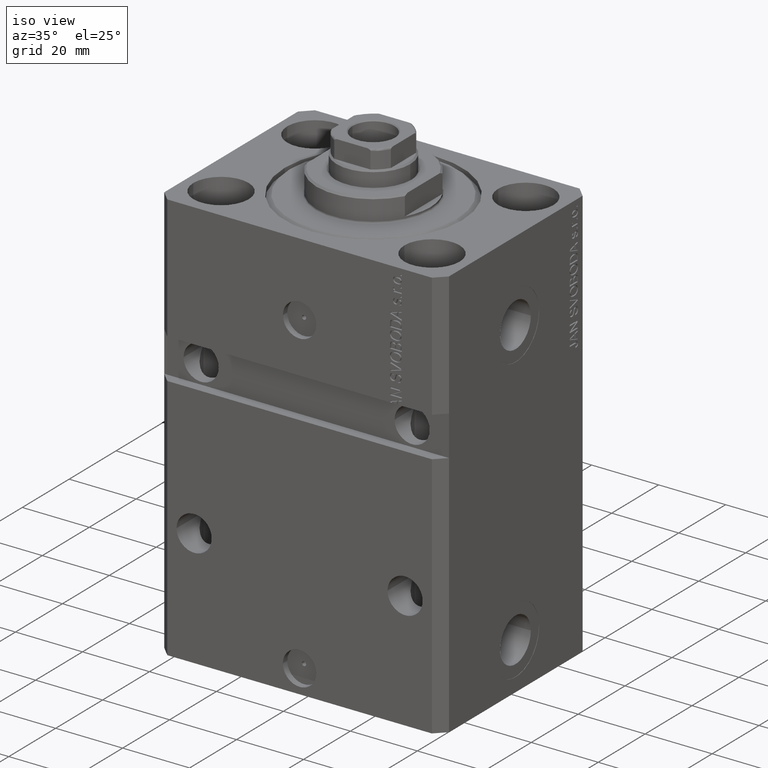
[diagram: clean part render]
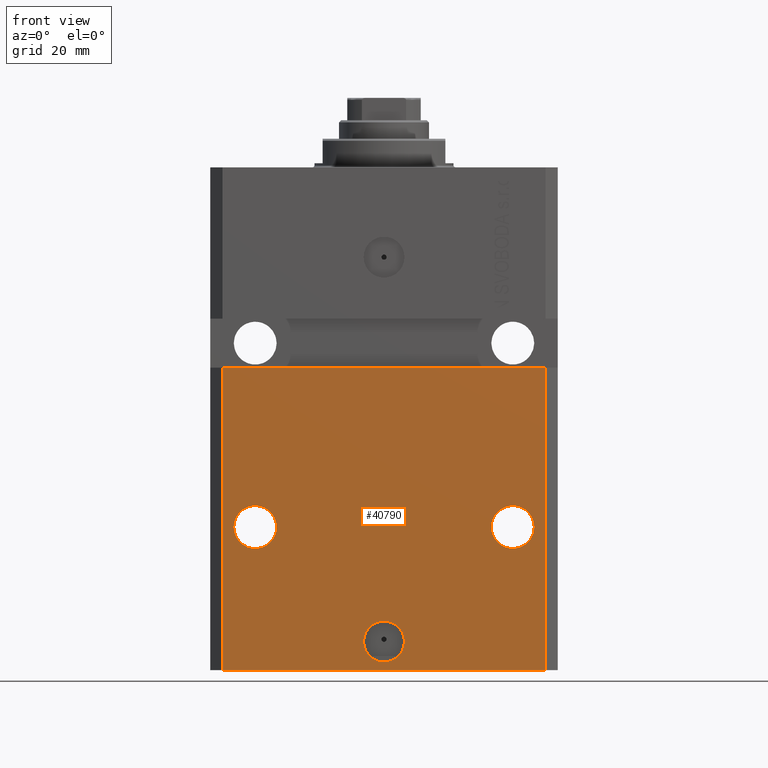
[diagram: tour spotlight — one face highlighted and labeled with its STEP entity id]
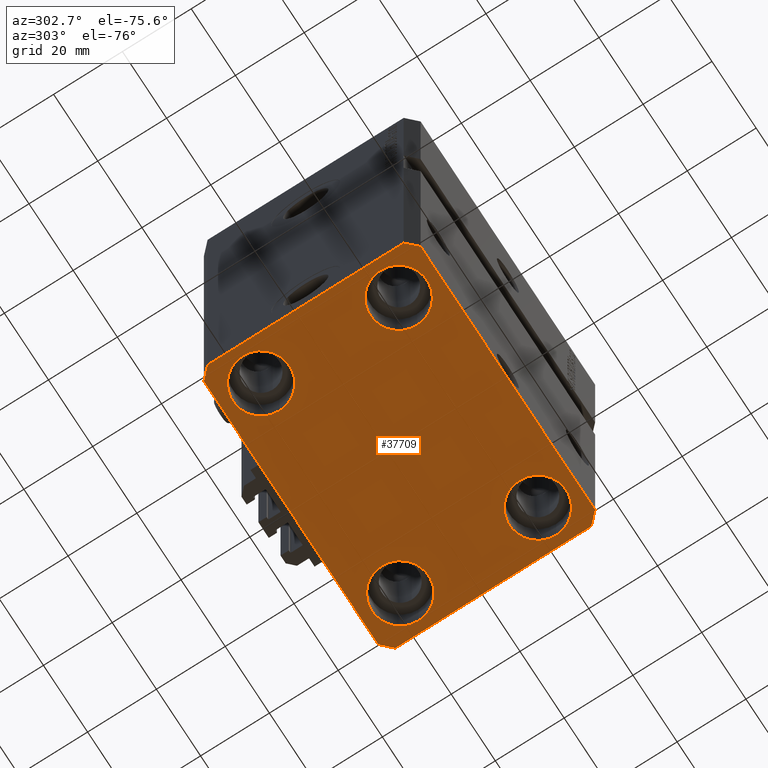
[diagram: tour spotlight — one face highlighted and labeled with its STEP entity id]
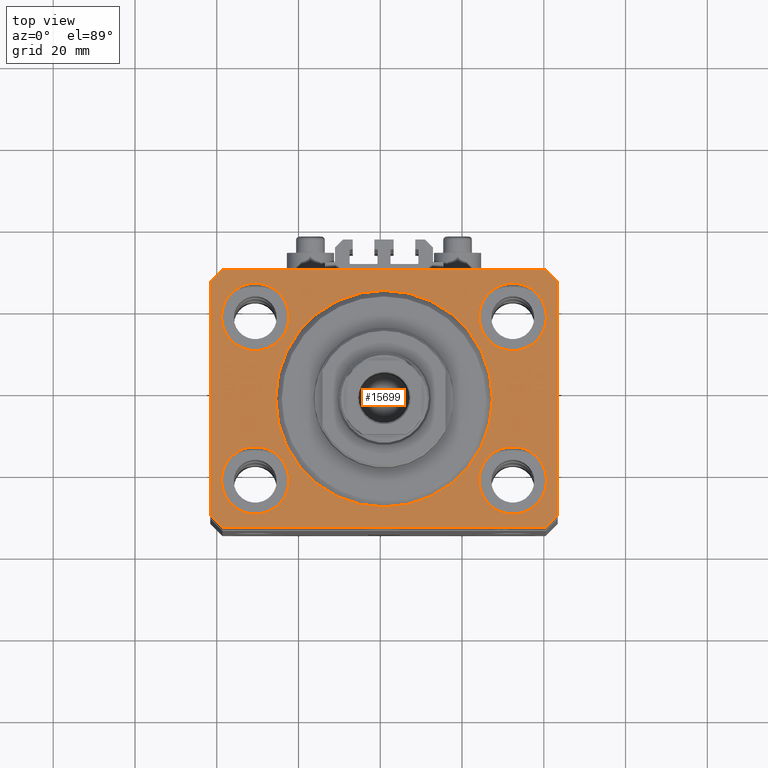
[diagram: tour spotlight — one face highlighted and labeled with its STEP entity id]
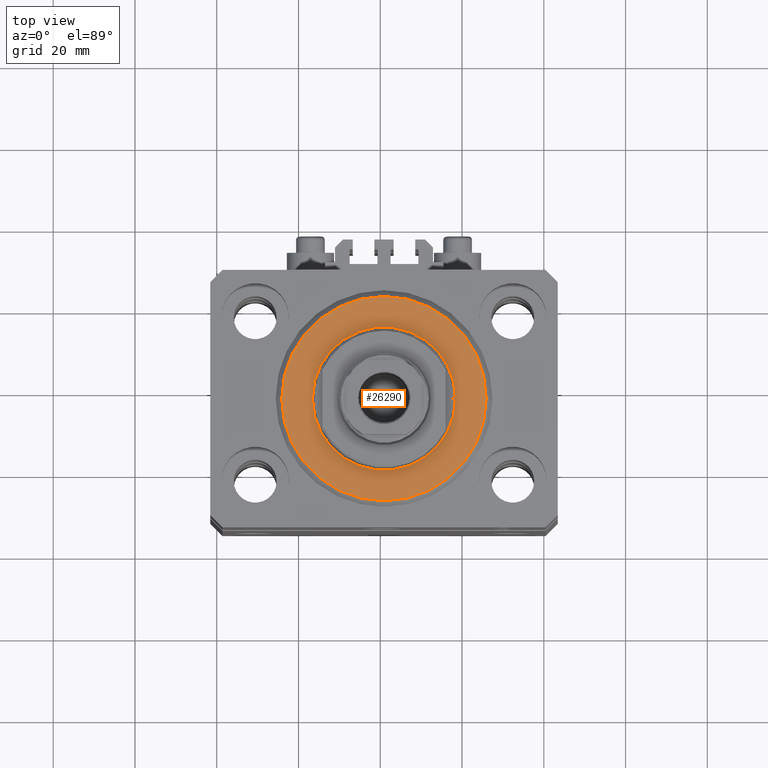
[diagram: tour spotlight — one face highlighted and labeled with its STEP entity id]
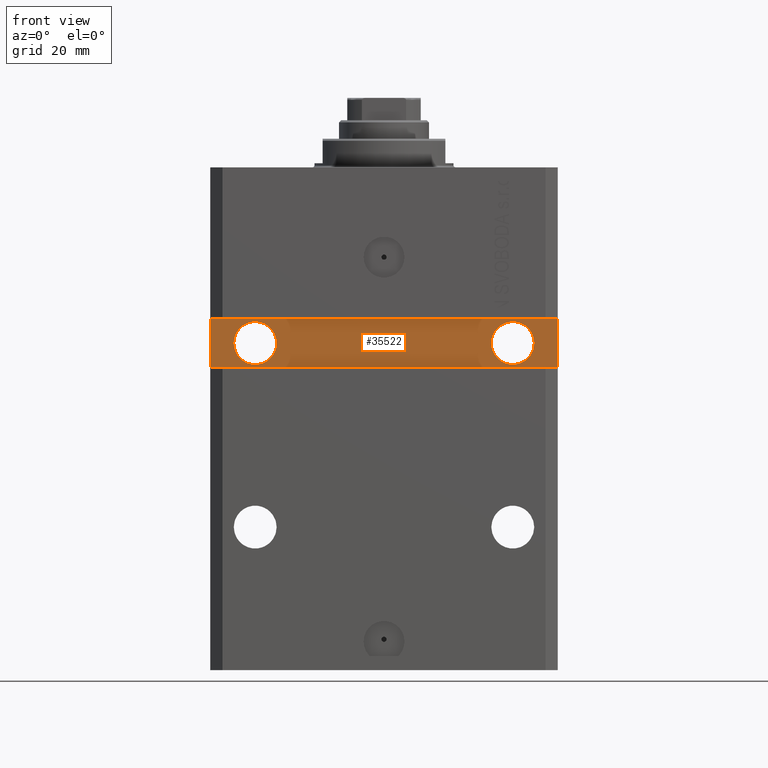
[diagram: tour spotlight — one face highlighted and labeled with its STEP entity id]
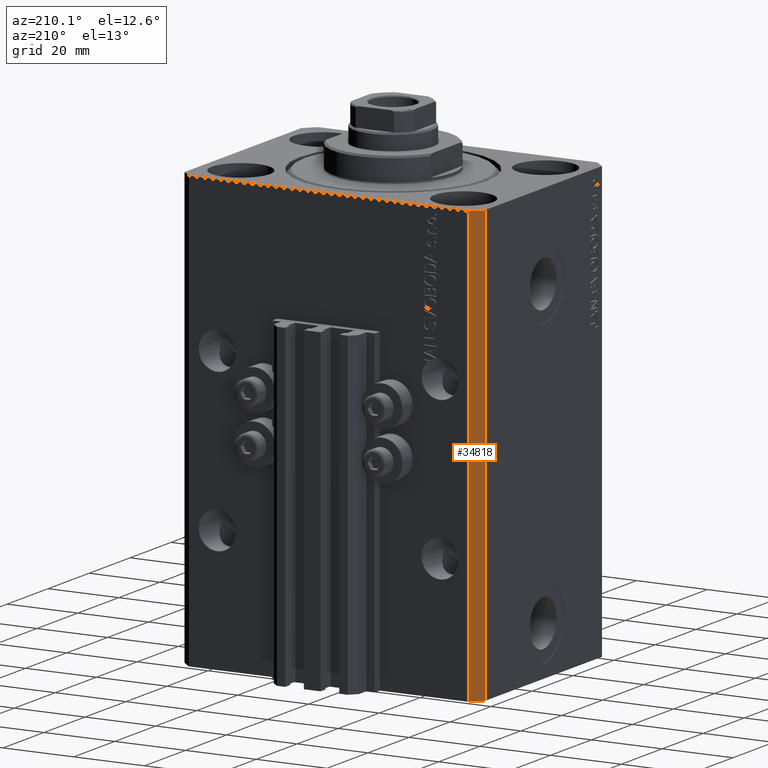
[diagram: tour spotlight — one face highlighted and labeled with its STEP entity id]
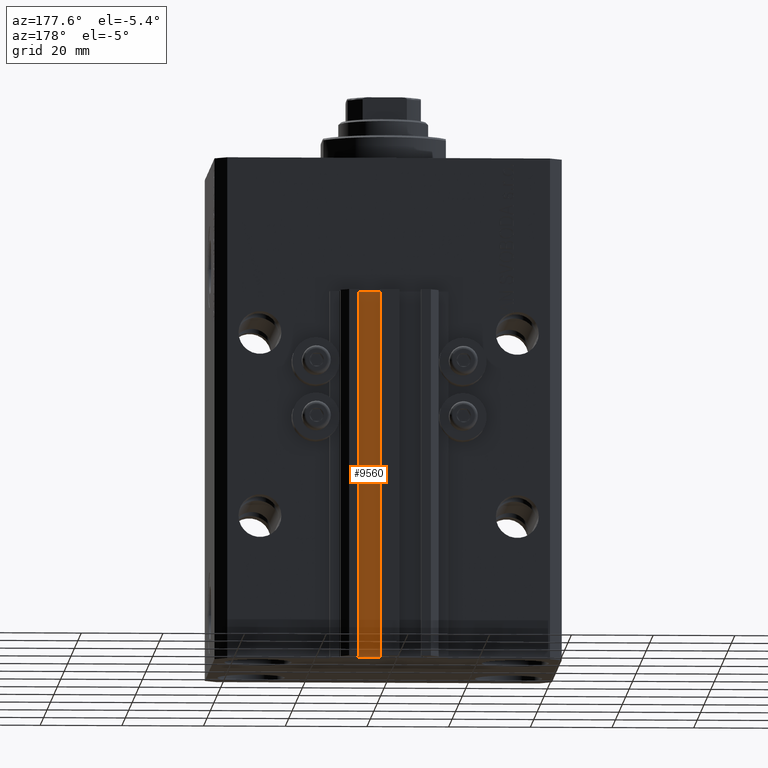
[diagram: tour spotlight — one face highlighted and labeled with its STEP entity id]
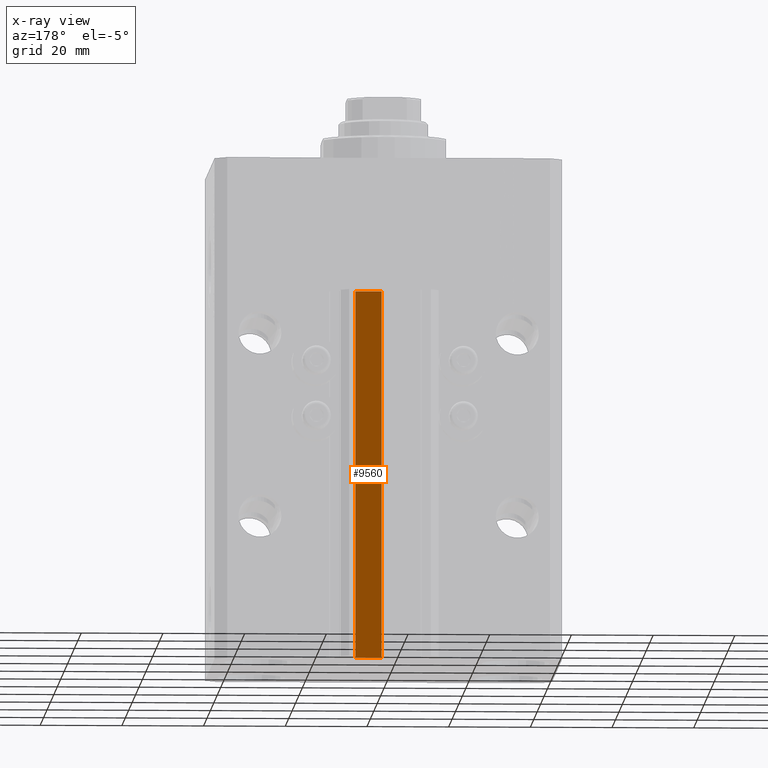
[diagram: x-ray of the same camera — body ghosted, this tour face saturated]
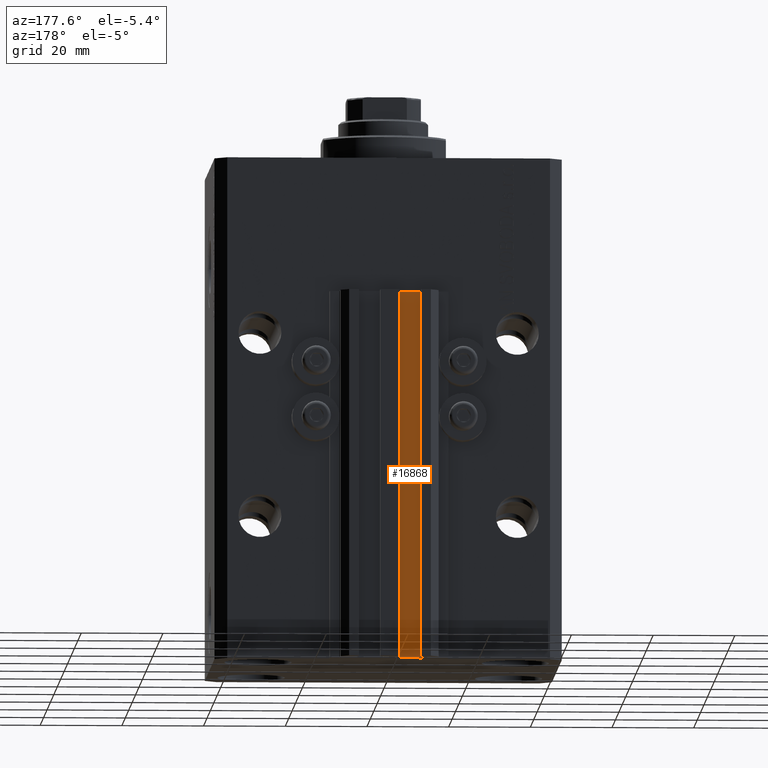
[diagram: tour spotlight — one face highlighted and labeled with its STEP entity id]
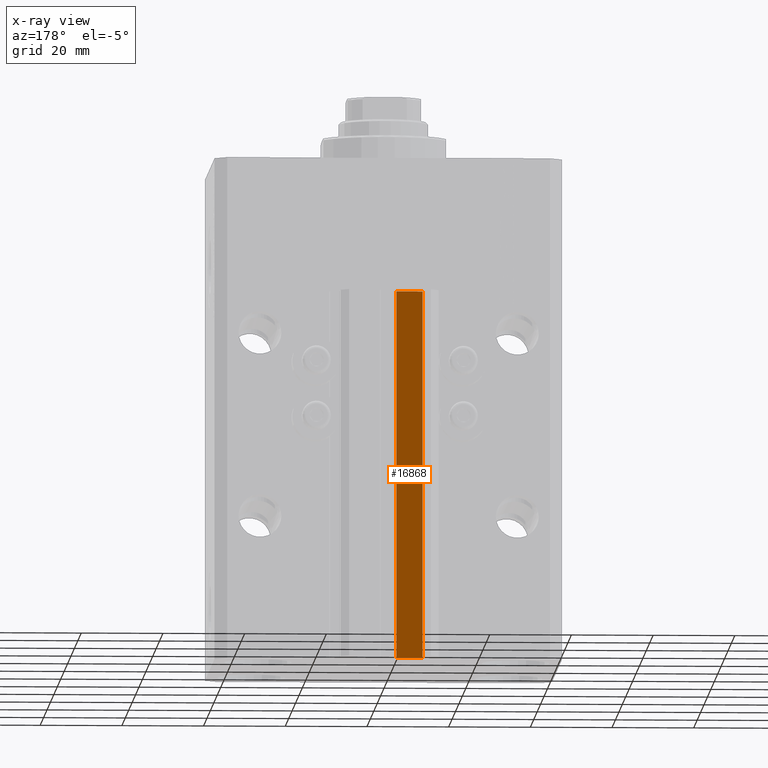
[diagram: x-ray of the same camera — body ghosted, this tour face saturated]
A machine part: a face-by-face anatomy tour. The part has 1123 B-rep faces; the first image is the clean iso view, then the 8 largest visible faces are spotlighted one at a time (largest first), each with its STEP entity span.

Face 1 — front view, entity #40790. In plain terms, the highlighted planar face has unit normal (0, -1, 0).
Definition (entity closure, byte-faithful):
#364 = CARTESIAN_POINT ( 'NONE',  ( 0.000000000000000000, -31.50000000000000000, -115.9999999999999858 ) ) ;
#481 = AXIS2_PLACEMENT_3D ( 'NONE', #810, #26676, #4748 ) ;
#676 = VECTOR ( 'NONE', #39851, 1000.000000000000000 ) ;
#810 = CARTESIAN_POINT ( 'NONE',  ( 31.50000000000001421, -31.49999999999999289, -88.00000000000000000 ) ) ;
#1027 = AXIS2_PLACEMENT_3D ( 'NONE', #41566, #22618, #26107 ) ;
#1991 = VERTEX_POINT ( 'NONE', #36711 ) ;
#2200 = AXIS2_PLACEMENT_3D ( 'NONE', #364, #23042, #26481 ) ;
#3393 = EDGE_CURVE ( 'NONE', #46586, #12138, #6645, .T. ) ;
#3699 = EDGE_CURVE ( 'NONE', #12850, #46586, #21127, .T. ) ;
#4072 = EDGE_CURVE ( 'NONE', #14318, #41833, #18187, .T. ) ;
#4573 = EDGE_CURVE ( 'NONE', #35524, #46515, #4810, .T. ) ;
#4748 = DIRECTION ( 'NONE',  ( 1.000000000000000000, 0.000000000000000000, 0.000000000000000000 ) ) ;
#4810 = CIRCLE ( 'NONE', #7177, 5.000000000000006217 ) ;
#5187 = CARTESIAN_POINT ( 'NONE',  ( -31.50000000000001421, -31.50000000000000711, -88.00000000000000000 ) ) ;
#5648 = ORIENTED_EDGE ( 'NONE', *, *, #43462, .F. ) ;
#6645 = LINE ( 'NONE', #20941, #9501 ) ;
#7177 = AXIS2_PLACEMENT_3D ( 'NONE', #8357, #27787, #23379 ) ;
#7343 = CARTESIAN_POINT ( 'NONE',  ( -31.50000000000001421, -31.50000000000000711, -88.00000000000000000 ) ) ;
#8019 = EDGE_LOOP ( 'NONE', ( #32770, #5648 ) ) ;
#8357 = CARTESIAN_POINT ( 'NONE',  ( 0.000000000000000000, -31.50000000000000000, -115.9999999999999858 ) ) ;
#9501 = VECTOR ( 'NONE', #47475, 1000.000000000000000 ) ;
#9855 = AXIS2_PLACEMENT_3D ( 'NONE', #44377, #28014, #24333 ) ;
#10042 = CARTESIAN_POINT ( 'NONE',  ( -39.50000000000000711, -31.50000000000000000, -123.0000000000000000 ) ) ;
#10569 = LINE ( 'NONE', #25585, #676 ) ;
#10682 = LINE ( 'NONE', #48043, #32215 ) ;
#11088 = FACE_BOUND ( 'NONE', #8019, .T. ) ;
#11574 = FACE_OUTER_BOUND ( 'NONE', #16522, .T. ) ;
#12138 = VERTEX_POINT ( 'NONE', #27140 ) ;
#12282 = VERTEX_POINT ( 'NONE', #15285 ) ;
#12799 = EDGE_LOOP ( 'NONE', ( #19626, #32009 ) ) ;
#12850 = VERTEX_POINT ( 'NONE', #24681 ) ;
#13094 = ORIENTED_EDGE ( 'NONE', *, *, #46032, .F. ) ;
#13485 = AXIS2_PLACEMENT_3D ( 'NONE', #5187, #35214, #23921 ) ;
#13979 = ORIENTED_EDGE ( 'NONE', *, *, #30166, .T. ) ;
#14318 = VERTEX_POINT ( 'NONE', #39580 ) ;
#15023 = FACE_BOUND ( 'NONE', #21446, .T. ) ;
#15285 = CARTESIAN_POINT ( 'NONE',  ( 26.25000000000001776, -31.49999999999999289, -88.00000000000000000 ) ) ;
#16522 = EDGE_LOOP ( 'NONE', ( #33530, #23820, #20403, #13979 ) ) ;
#18187 = CIRCLE ( 'NONE', #13485, 5.249999999999997335 ) ;
#19626 = ORIENTED_EDGE ( 'NONE', *, *, #4573, .F. ) ;
#20105 = AXIS2_PLACEMENT_3D ( 'NONE', #7343, #36874, #26061 ) ;
#20343 = CARTESIAN_POINT ( 'NONE',  ( -36.75000000000001421, -31.50000000000000711, -88.00000000000000000 ) ) ;
#20380 = VERTEX_POINT ( 'NONE', #37929 ) ;
#20403 = ORIENTED_EDGE ( 'NONE', *, *, #27224, .T. ) ;
#20941 = CARTESIAN_POINT ( 'NONE',  ( -42.50000000000000000, -31.50000000000000711, -48.99999999999999289 ) ) ;
#21127 = LINE ( 'NONE', #10042, #38552 ) ;
#21446 = EDGE_LOOP ( 'NONE', ( #13094, #47151 ) ) ;
#21721 = CIRCLE ( 'NONE', #481, 5.249999999999997335 ) ;
#22006 = DIRECTION ( 'NONE',  ( 0.000000000000000000, 0.000000000000000000, 1.000000000000000000 ) ) ;
#22618 = DIRECTION ( 'NONE',  ( 0.000000000000000000, -1.000000000000000000, 0.000000000000000000 ) ) ;
#22668 = EDGE_CURVE ( 'NONE', #12282, #20380, #21721, .T. ) ;
#23042 = DIRECTION ( 'NONE',  ( 1.176083712526788232E-16, -1.000000000000000000, 0.000000000000000000 ) ) ;
#23379 = DIRECTION ( 'NONE',  ( 1.000000000000000000, 0.000000000000000000, 0.000000000000000000 ) ) ;
#23384 = FACE_BOUND ( 'NONE', #12799, .T. ) ;
#23429 = CARTESIAN_POINT ( 'NONE',  ( -39.50000000000000000, -31.50000000000000711, -48.99999999999999289 ) ) ;
#23820 = ORIENTED_EDGE ( 'NONE', *, *, #3699, .F. ) ;
#23921 = DIRECTION ( 'NONE',  ( -1.000000000000000000, 0.000000000000000000, 0.000000000000000000 ) ) ;
#24052 = CIRCLE ( 'NONE', #20105, 5.249999999999997335 ) ;
#24333 = DIRECTION ( 'NONE',  ( 1.000000000000000000, 0.000000000000000000, 0.000000000000000000 ) ) ;
#24681 = CARTESIAN_POINT ( 'NONE',  ( -39.50000000000000711, -31.50000000000000000, -123.0000000000000000 ) ) ;
#25585 = CARTESIAN_POINT ( 'NONE',  ( -39.50000000000000711, -31.50000000000000000, -123.0000000000000000 ) ) ;
#26061 = DIRECTION ( 'NONE',  ( -1.000000000000000000, 0.000000000000000000, 0.000000000000000000 ) ) ;
#26107 = DIRECTION ( 'NONE',  ( 0.000000000000000000, -0.000000000000000000, -1.000000000000000000 ) ) ;
#26481 = DIRECTION ( 'NONE',  ( 1.000000000000000000, 0.000000000000000000, 0.000000000000000000 ) ) ;
#26584 = PLANE ( 'NONE',  #1027 ) ;
#26670 = EDGE_CURVE ( 'NONE', #46515, #35524, #29724, .T. ) ;
#26676 = DIRECTION ( 'NONE',  ( 1.176083712526788232E-16, -1.000000000000000000, 0.000000000000000000 ) ) ;
#27140 = CARTESIAN_POINT ( 'NONE',  ( 39.50000000000001421, -31.49999999999999289, -48.99999999999997868 ) ) ;
#27224 = EDGE_CURVE ( 'NONE', #12850, #1991, #10569, .T. ) ;
#27787 = DIRECTION ( 'NONE',  ( 1.176083712526788232E-16, -1.000000000000000000, 0.000000000000000000 ) ) ;
#28014 = DIRECTION ( 'NONE',  ( 1.176083712526788232E-16, -1.000000000000000000, 0.000000000000000000 ) ) ;
#29724 = CIRCLE ( 'NONE', #2200, 5.000000000000006217 ) ;
#30166 = EDGE_CURVE ( 'NONE', #1991, #12138, #10682, .T. ) ;
#31065 = CIRCLE ( 'NONE', #9855, 5.249999999999997335 ) ;
#32009 = ORIENTED_EDGE ( 'NONE', *, *, #26670, .F. ) ;
#32215 = VECTOR ( 'NONE', #22006, 1000.000000000000000 ) ;
#32770 = ORIENTED_EDGE ( 'NONE', *, *, #4072, .F. ) ;
#33530 = ORIENTED_EDGE ( 'NONE', *, *, #3393, .F. ) ;
#35214 = DIRECTION ( 'NONE',  ( 1.176083712526788232E-16, -1.000000000000000000, 0.000000000000000000 ) ) ;
#35524 = VERTEX_POINT ( 'NONE', #38906 ) ;
#36711 = CARTESIAN_POINT ( 'NONE',  ( 39.50000000000000711, -31.50000000000000000, -123.0000000000000000 ) ) ;
#36874 = DIRECTION ( 'NONE',  ( 1.176083712526788232E-16, -1.000000000000000000, 0.000000000000000000 ) ) ;
#37329 = DIRECTION ( 'NONE',  ( 0.000000000000000000, 0.000000000000000000, 1.000000000000000000 ) ) ;
#37929 = CARTESIAN_POINT ( 'NONE',  ( 36.75000000000001421, -31.49999999999999289, -88.00000000000000000 ) ) ;
#38552 = VECTOR ( 'NONE', #37329, 1000.000000000000000 ) ;
#38906 = CARTESIAN_POINT ( 'NONE',  ( 5.000000000000006217, -31.50000000000000000, -115.9999999999999858 ) ) ;
#39580 = CARTESIAN_POINT ( 'NONE',  ( -26.25000000000001776, -31.50000000000000711, -88.00000000000000000 ) ) ;
#39851 = DIRECTION ( 'NONE',  ( 1.000000000000000000, 0.000000000000000000, 0.000000000000000000 ) ) ;
#40790 = ADVANCED_FACE ( 'NONE', ( #23384, #15023, #11088, #11574 ), #26584, .T. ) ;
#41566 = CARTESIAN_POINT ( 'NONE',  ( -39.50000000000000711, -31.50000000000000000, -123.0000000000000000 ) ) ;
#41833 = VERTEX_POINT ( 'NONE', #20343 ) ;
#43462 = EDGE_CURVE ( 'NONE', #41833, #14318, #24052, .T. ) ;
#44377 = CARTESIAN_POINT ( 'NONE',  ( 31.50000000000001421, -31.49999999999999289, -88.00000000000000000 ) ) ;
#45060 = CARTESIAN_POINT ( 'NONE',  ( -5.000000000000006217, -31.50000000000000000, -115.9999999999999858 ) ) ;
#46032 = EDGE_CURVE ( 'NONE', #20380, #12282, #31065, .T. ) ;
#46515 = VERTEX_POINT ( 'NONE', #45060 ) ;
#46586 = VERTEX_POINT ( 'NONE', #23429 ) ;
#47151 = ORIENTED_EDGE ( 'NONE', *, *, #22668, .F. ) ;
#47475 = DIRECTION ( 'NONE',  ( 1.000000000000000000, 1.632680918566406300E-16, 1.632680918566406300E-16 ) ) ;
#48043 = CARTESIAN_POINT ( 'NONE',  ( 39.50000000000000711, -31.50000000000000000, -123.0000000000000000 ) ) ;

Face 2 — auxiliary view, entity #37709. In plain terms, the highlighted planar face has unit normal (0, 0, 1).
Definition (entity closure, byte-faithful):
#188 = VERTEX_POINT ( 'NONE', #15556 ) ;
#575 = DIRECTION ( 'NONE',  ( -0.7071067811865356934, 0.7071067811865594521, 0.000000000000000000 ) ) ;
#676 = VECTOR ( 'NONE', #39851, 1000.000000000000000 ) ;
#1502 = VERTEX_POINT ( 'NONE', #8775 ) ;
#1807 = CARTESIAN_POINT ( 'NONE',  ( -39.75000000000000000, -20.00000000000000000, -123.0000000000000000 ) ) ;
#1820 = ORIENTED_EDGE ( 'NONE', *, *, #35603, .F. ) ;
#1890 = LINE ( 'NONE', #16918, #36206 ) ;
#1991 = VERTEX_POINT ( 'NONE', #36711 ) ;
#2581 = CARTESIAN_POINT ( 'NONE',  ( 42.50000000000000711, -28.50000000000000355, -123.0000000000000000 ) ) ;
#3047 = CARTESIAN_POINT ( 'NONE',  ( 23.25000000000000355, -20.00000000000000000, -123.0000000000000000 ) ) ;
#3106 = AXIS2_PLACEMENT_3D ( 'NONE', #32921, #9555, #48135 ) ;
#3229 = AXIS2_PLACEMENT_3D ( 'NONE', #7138, #11324, #7385 ) ;
#3384 = CARTESIAN_POINT ( 'NONE',  ( -31.50000000000000000, -20.00000000000000000, -123.0000000000000000 ) ) ;
#3907 = DIRECTION ( 'NONE',  ( -0.000000000000000000, -0.000000000000000000, 1.000000000000000000 ) ) ;
#3994 = ORIENTED_EDGE ( 'NONE', *, *, #9466, .T. ) ;
#4876 = AXIS2_PLACEMENT_3D ( 'NONE', #3384, #6850, #48153 ) ;
#5005 = VERTEX_POINT ( 'NONE', #17140 ) ;
#5127 = LINE ( 'NONE', #46935, #39083 ) ;
#5775 = VERTEX_POINT ( 'NONE', #44403 ) ;
#6768 = EDGE_LOOP ( 'NONE', ( #21247, #23222, #32400, #32629, #19573, #43580, #44068, #1820 ) ) ;
#6803 = EDGE_CURVE ( 'NONE', #37046, #26685, #32414, .T. ) ;
#6850 = DIRECTION ( 'NONE',  ( -0.000000000000000000, -0.000000000000000000, 1.000000000000000000 ) ) ;
#6864 = EDGE_LOOP ( 'NONE', ( #41346, #44423 ) ) ;
#7138 = CARTESIAN_POINT ( 'NONE',  ( 31.50000000000000000, -20.00000000000000000, -123.0000000000000000 ) ) ;
#7385 = DIRECTION ( 'NONE',  ( 1.000000000000000000, 0.000000000000000000, 0.000000000000000000 ) ) ;
#7843 = CARTESIAN_POINT ( 'NONE',  ( -23.25000000000000000, -20.00000000000000000, -123.0000000000000000 ) ) ;
#8218 = EDGE_CURVE ( 'NONE', #26685, #37046, #39375, .T. ) ;
#8570 = PLANE ( 'NONE',  #34691 ) ;
#8775 = CARTESIAN_POINT ( 'NONE',  ( 42.50000000000051870, 28.49999999999995381, -123.0000000000000000 ) ) ;
#8844 = VECTOR ( 'NONE', #575, 1000.000000000000114 ) ;
#9087 = VERTEX_POINT ( 'NONE', #1807 ) ;
#9466 = EDGE_CURVE ( 'NONE', #9087, #48438, #40256, .T. ) ;
#9481 = EDGE_CURVE ( 'NONE', #48438, #9087, #37905, .T. ) ;
#9555 = DIRECTION ( 'NONE',  ( -0.000000000000000000, -0.000000000000000000, 1.000000000000000000 ) ) ;
#9732 = DIRECTION ( 'NONE',  ( 8.886653596232072440E-15, 1.000000000000000000, 0.000000000000000000 ) ) ;
#10152 = VECTOR ( 'NONE', #9732, 1000.000000000000000 ) ;
#10569 = LINE ( 'NONE', #25585, #676 ) ;
#10584 = VERTEX_POINT ( 'NONE', #35591 ) ;
#11324 = DIRECTION ( 'NONE',  ( -0.000000000000000000, -0.000000000000000000, 1.000000000000000000 ) ) ;
#11457 = DIRECTION ( 'NONE',  ( 1.000000000000000000, 0.000000000000000000, 0.000000000000000000 ) ) ;
#11650 = DIRECTION ( 'NONE',  ( 0.000000000000000000, -1.000000000000000000, 0.000000000000000000 ) ) ;
#11698 = CARTESIAN_POINT ( 'NONE',  ( 31.50000000000000000, -20.00000000000000000, -123.0000000000000000 ) ) ;
#12031 = DIRECTION ( 'NONE',  ( 0.000000000000000000, 0.000000000000000000, 1.000000000000000000 ) ) ;
#12458 = CARTESIAN_POINT ( 'NONE',  ( -39.50000000000000711, 31.50000000000000000, -123.0000000000000000 ) ) ;
#12517 = FACE_OUTER_BOUND ( 'NONE', #6768, .T. ) ;
#12850 = VERTEX_POINT ( 'NONE', #24681 ) ;
#12938 = DIRECTION ( 'NONE',  ( -0.000000000000000000, -0.000000000000000000, 1.000000000000000000 ) ) ;
#13597 = CIRCLE ( 'NONE', #41882, 8.250000000000000000 ) ;
#14922 = VERTEX_POINT ( 'NONE', #21940 ) ;
#14966 = DIRECTION ( 'NONE',  ( -0.000000000000000000, -0.000000000000000000, 1.000000000000000000 ) ) ;
#15207 = DIRECTION ( 'NONE',  ( 1.000000000000000000, 0.000000000000000000, 0.000000000000000000 ) ) ;
#15556 = CARTESIAN_POINT ( 'NONE',  ( 39.50000000000056843, 31.50000000000000000, -123.0000000000000000 ) ) ;
#15637 = CARTESIAN_POINT ( 'NONE',  ( 39.74999999999999289, -20.00000000000000000, -123.0000000000000000 ) ) ;
#16321 = EDGE_CURVE ( 'NONE', #14922, #12850, #40561, .T. ) ;
#16682 = EDGE_CURVE ( 'NONE', #5005, #14922, #22503, .T. ) ;
#16918 = CARTESIAN_POINT ( 'NONE',  ( -39.50000000000000711, 31.50000000000000000, -123.0000000000000000 ) ) ;
#17140 = CARTESIAN_POINT ( 'NONE',  ( -42.50000000000000000, 28.50000000000000000, -123.0000000000000000 ) ) ;
#18085 = LINE ( 'NONE', #2581, #10152 ) ;
#18846 = ORIENTED_EDGE ( 'NONE', *, *, #40550, .T. ) ;
#18920 = CARTESIAN_POINT ( 'NONE',  ( 39.50000000000056843, 31.50000000000000000, -123.0000000000000000 ) ) ;
#19271 = CIRCLE ( 'NONE', #25557, 8.249999999999992895 ) ;
#19380 = VERTEX_POINT ( 'NONE', #36405 ) ;
#19573 = ORIENTED_EDGE ( 'NONE', *, *, #27224, .F. ) ;
#19655 = FACE_BOUND ( 'NONE', #30482, .T. ) ;
#19880 = EDGE_CURVE ( 'NONE', #22264, #10584, #19271, .T. ) ;
#21247 = ORIENTED_EDGE ( 'NONE', *, *, #43692, .F. ) ;
#21782 = EDGE_LOOP ( 'NONE', ( #30741, #33622 ) ) ;
#21940 = CARTESIAN_POINT ( 'NONE',  ( -42.50000000000000000, -28.50000000000000000, -123.0000000000000000 ) ) ;
#22264 = VERTEX_POINT ( 'NONE', #36594 ) ;
#22503 = LINE ( 'NONE', #45091, #45187 ) ;
#23222 = ORIENTED_EDGE ( 'NONE', *, *, #39241, .F. ) ;
#23845 = EDGE_LOOP ( 'NONE', ( #32105, #18846 ) ) ;
#24557 = EDGE_CURVE ( 'NONE', #1991, #5775, #5127, .T. ) ;
#24681 = CARTESIAN_POINT ( 'NONE',  ( -39.50000000000000711, -31.50000000000000000, -123.0000000000000000 ) ) ;
#25557 = AXIS2_PLACEMENT_3D ( 'NONE', #31884, #12938, #43169 ) ;
#25585 = CARTESIAN_POINT ( 'NONE',  ( -39.50000000000000711, -31.50000000000000000, -123.0000000000000000 ) ) ;
#26062 = CARTESIAN_POINT ( 'NONE',  ( -42.50000000000000000, -28.50000000000000000, -123.0000000000000000 ) ) ;
#26083 = CARTESIAN_POINT ( 'NONE',  ( 31.50000000000000000, 20.00000000000001066, -123.0000000000000000 ) ) ;
#26302 = DIRECTION ( 'NONE',  ( 0.7071067811865471286, -0.7071067811865479058, 0.000000000000000000 ) ) ;
#26451 = CARTESIAN_POINT ( 'NONE',  ( 42.50000000000051870, 28.49999999999995381, -123.0000000000000000 ) ) ;
#26643 = CARTESIAN_POINT ( 'NONE',  ( -31.50000000000000000, 20.00000000000000000, -123.0000000000000000 ) ) ;
#26685 = VERTEX_POINT ( 'NONE', #15637 ) ;
#26886 = AXIS2_PLACEMENT_3D ( 'NONE', #29246, #14966, #15207 ) ;
#27224 = EDGE_CURVE ( 'NONE', #12850, #1991, #10569, .T. ) ;
#27282 = FACE_BOUND ( 'NONE', #6864, .T. ) ;
#28426 = AXIS2_PLACEMENT_3D ( 'NONE', #26083, #3907, #41068 ) ;
#28597 = VERTEX_POINT ( 'NONE', #12458 ) ;
#28669 = EDGE_CURVE ( 'NONE', #5775, #1502, #18085, .T. ) ;
#29246 = CARTESIAN_POINT ( 'NONE',  ( -31.50000000000000000, -20.00000000000000000, -123.0000000000000000 ) ) ;
#30482 = EDGE_LOOP ( 'NONE', ( #3994, #44217 ) ) ;
#30741 = ORIENTED_EDGE ( 'NONE', *, *, #6803, .T. ) ;
#30808 = CIRCLE ( 'NONE', #28426, 8.249999999999992895 ) ;
#31122 = DIRECTION ( 'NONE',  ( -0.000000000000000000, -0.000000000000000000, 1.000000000000000000 ) ) ;
#31189 = LINE ( 'NONE', #18920, #45988 ) ;
#31884 = CARTESIAN_POINT ( 'NONE',  ( 31.50000000000000000, 20.00000000000001066, -123.0000000000000000 ) ) ;
#31926 = DIRECTION ( 'NONE',  ( -0.7071067811865471286, -0.7071067811865479058, 0.000000000000000000 ) ) ;
#32105 = ORIENTED_EDGE ( 'NONE', *, *, #33809, .T. ) ;
#32400 = ORIENTED_EDGE ( 'NONE', *, *, #28669, .F. ) ;
#32414 = CIRCLE ( 'NONE', #36991, 8.249999999999992895 ) ;
#32629 = ORIENTED_EDGE ( 'NONE', *, *, #24557, .F. ) ;
#32921 = CARTESIAN_POINT ( 'NONE',  ( -31.50000000000000000, 20.00000000000000000, -123.0000000000000000 ) ) ;
#33622 = ORIENTED_EDGE ( 'NONE', *, *, #8218, .T. ) ;
#33809 = EDGE_CURVE ( 'NONE', #43514, #19380, #39286, .T. ) ;
#33915 = DIRECTION ( 'NONE',  ( -1.000000000000000000, 0.000000000000000000, 0.000000000000000000 ) ) ;
#34022 = DIRECTION ( 'NONE',  ( -0.000000000000000000, -0.000000000000000000, 1.000000000000000000 ) ) ;
#34653 = DIRECTION ( 'NONE',  ( 1.000000000000000000, 0.000000000000000000, -0.000000000000000000 ) ) ;
#34691 = AXIS2_PLACEMENT_3D ( 'NONE', #42739, #12031, #34653 ) ;
#35591 = CARTESIAN_POINT ( 'NONE',  ( 23.25000000000000355, 20.00000000000001066, -123.0000000000000000 ) ) ;
#35603 = EDGE_CURVE ( 'NONE', #28597, #5005, #1890, .T. ) ;
#35645 = DIRECTION ( 'NONE',  ( 0.7071067811865483499, 0.7071067811865466846, 0.000000000000000000 ) ) ;
#36206 = VECTOR ( 'NONE', #31926, 1000.000000000000000 ) ;
#36405 = CARTESIAN_POINT ( 'NONE',  ( -23.25000000000000000, 20.00000000000000000, -123.0000000000000000 ) ) ;
#36594 = CARTESIAN_POINT ( 'NONE',  ( 39.74999999999999289, 20.00000000000001066, -123.0000000000000000 ) ) ;
#36711 = CARTESIAN_POINT ( 'NONE',  ( 39.50000000000000711, -31.50000000000000000, -123.0000000000000000 ) ) ;
#36991 = AXIS2_PLACEMENT_3D ( 'NONE', #11698, #31122, #11457 ) ;
#37046 = VERTEX_POINT ( 'NONE', #3047 ) ;
#37645 = EDGE_CURVE ( 'NONE', #10584, #22264, #30808, .T. ) ;
#37709 = ADVANCED_FACE ( 'NONE', ( #19655, #45945, #27282, #38819, #12517 ), #8570, .F. ) ;
#37905 = CIRCLE ( 'NONE', #26886, 8.250000000000000000 ) ;
#38184 = DIRECTION ( 'NONE',  ( 1.000000000000000000, 0.000000000000000000, 0.000000000000000000 ) ) ;
#38465 = LINE ( 'NONE', #26451, #8844 ) ;
#38819 = FACE_BOUND ( 'NONE', #23845, .T. ) ;
#39083 = VECTOR ( 'NONE', #35645, 1000.000000000000000 ) ;
#39241 = EDGE_CURVE ( 'NONE', #1502, #188, #38465, .T. ) ;
#39286 = CIRCLE ( 'NONE', #3106, 8.250000000000000000 ) ;
#39375 = CIRCLE ( 'NONE', #3229, 8.249999999999992895 ) ;
#39851 = DIRECTION ( 'NONE',  ( 1.000000000000000000, 0.000000000000000000, 0.000000000000000000 ) ) ;
#40256 = CIRCLE ( 'NONE', #4876, 8.250000000000000000 ) ;
#40550 = EDGE_CURVE ( 'NONE', #19380, #43514, #13597, .T. ) ;
#40561 = LINE ( 'NONE', #26062, #43573 ) ;
#41068 = DIRECTION ( 'NONE',  ( 1.000000000000000000, 0.000000000000000000, 0.000000000000000000 ) ) ;
#41346 = ORIENTED_EDGE ( 'NONE', *, *, #37645, .T. ) ;
#41882 = AXIS2_PLACEMENT_3D ( 'NONE', #26643, #34022, #38184 ) ;
#42739 = CARTESIAN_POINT ( 'NONE',  ( 0.000000000000000000, 0.000000000000000000, -123.0000000000000000 ) ) ;
#43169 = DIRECTION ( 'NONE',  ( 1.000000000000000000, 0.000000000000000000, 0.000000000000000000 ) ) ;
#43514 = VERTEX_POINT ( 'NONE', #48404 ) ;
#43573 = VECTOR ( 'NONE', #26302, 1000.000000000000000 ) ;
#43580 = ORIENTED_EDGE ( 'NONE', *, *, #16321, .F. ) ;
#43692 = EDGE_CURVE ( 'NONE', #188, #28597, #31189, .T. ) ;
#44068 = ORIENTED_EDGE ( 'NONE', *, *, #16682, .F. ) ;
#44217 = ORIENTED_EDGE ( 'NONE', *, *, #9481, .T. ) ;
#44403 = CARTESIAN_POINT ( 'NONE',  ( 42.50000000000000711, -28.50000000000000355, -123.0000000000000000 ) ) ;
#44423 = ORIENTED_EDGE ( 'NONE', *, *, #19880, .T. ) ;
#45091 = CARTESIAN_POINT ( 'NONE',  ( -42.50000000000000000, 28.50000000000000000, -123.0000000000000000 ) ) ;
#45187 = VECTOR ( 'NONE', #11650, 1000.000000000000000 ) ;
#45945 = FACE_BOUND ( 'NONE', #21782, .T. ) ;
#45988 = VECTOR ( 'NONE', #33915, 1000.000000000000000 ) ;
#46935 = CARTESIAN_POINT ( 'NONE',  ( 39.50000000000000711, -31.50000000000000000, -123.0000000000000000 ) ) ;
#48135 = DIRECTION ( 'NONE',  ( 1.000000000000000000, 0.000000000000000000, 0.000000000000000000 ) ) ;
#48153 = DIRECTION ( 'NONE',  ( 1.000000000000000000, 0.000000000000000000, 0.000000000000000000 ) ) ;
#48404 = CARTESIAN_POINT ( 'NONE',  ( -39.75000000000000000, 20.00000000000000000, -123.0000000000000000 ) ) ;
#48438 = VERTEX_POINT ( 'NONE', #7843 ) ;

Face 3 — top view, entity #15699. In plain terms, the highlighted planar face has unit normal (0, 0, 1).
Definition (entity closure, byte-faithful):
#1451 = EDGE_LOOP ( 'NONE', ( #20819, #42472 ) ) ;
#2128 = CARTESIAN_POINT ( 'NONE',  ( -31.50000000000000000, -20.00000000000000000, 0.000000000000000000 ) ) ;
#2168 = AXIS2_PLACEMENT_3D ( 'NONE', #19854, #34857, #46145 ) ;
#2182 = VERTEX_POINT ( 'NONE', #30547 ) ;
#2848 = EDGE_CURVE ( 'NONE', #27493, #10673, #40148, .T. ) ;
#2892 = CARTESIAN_POINT ( 'NONE',  ( 39.50000000000000711, -31.50000000000000000, 0.000000000000000000 ) ) ;
#3167 = CARTESIAN_POINT ( 'NONE',  ( 42.50000000000000711, -28.50000000000000355, 0.000000000000000000 ) ) ;
#3176 = CIRCLE ( 'NONE', #42469, 8.250000000000000000 ) ;
#3332 = CARTESIAN_POINT ( 'NONE',  ( 0.000000000000000000, 0.000000000000000000, 0.000000000000000000 ) ) ;
#3644 = DIRECTION ( 'NONE',  ( 1.000000000000000000, 0.000000000000000000, 0.000000000000000000 ) ) ;
#3754 = DIRECTION ( 'NONE',  ( 1.000000000000000000, 0.000000000000000000, 0.000000000000000000 ) ) ;
#3762 = DIRECTION ( 'NONE',  ( 0.000000000000000000, 0.000000000000000000, 1.000000000000000000 ) ) ;
#4587 = DIRECTION ( 'NONE',  ( 0.000000000000000000, 0.000000000000000000, 1.000000000000000000 ) ) ;
#4807 = EDGE_CURVE ( 'NONE', #42598, #13235, #26849, .T. ) ;
#4835 = CARTESIAN_POINT ( 'NONE',  ( 23.25000000000000355, 20.00000000000001066, 0.000000000000000000 ) ) ;
#5628 = AXIS2_PLACEMENT_3D ( 'NONE', #23800, #4587, #38780 ) ;
#5639 = VECTOR ( 'NONE', #14384, 1000.000000000000000 ) ;
#5973 = ORIENTED_EDGE ( 'NONE', *, *, #30774, .T. ) ;
#6206 = VECTOR ( 'NONE', #10080, 1000.000000000000000 ) ;
#7602 = EDGE_CURVE ( 'NONE', #33212, #24426, #16941, .T. ) ;
#7728 = AXIS2_PLACEMENT_3D ( 'NONE', #18792, #3762, #29853 ) ;
#7755 = CARTESIAN_POINT ( 'NONE',  ( -42.50000000000000000, -28.50000000000000000, 0.000000000000000000 ) ) ;
#8003 = PLANE ( 'NONE',  #31836 ) ;
#8625 = AXIS2_PLACEMENT_3D ( 'NONE', #18701, #37869, #11072 ) ;
#8649 = CARTESIAN_POINT ( 'NONE',  ( -42.50000000000000000, 28.50000000000000000, 0.000000000000000000 ) ) ;
#9747 = ORIENTED_EDGE ( 'NONE', *, *, #31497, .T. ) ;
#9811 = CIRCLE ( 'NONE', #37304, 8.249999999999992895 ) ;
#10080 = DIRECTION ( 'NONE',  ( 0.7071067811865483499, 0.7071067811865466846, 0.000000000000000000 ) ) ;
#10108 = VERTEX_POINT ( 'NONE', #45557 ) ;
#10312 = VERTEX_POINT ( 'NONE', #37868 ) ;
#10568 = CARTESIAN_POINT ( 'NONE',  ( 39.50000000000000711, -31.50000000000000000, 0.000000000000000000 ) ) ;
#10673 = VERTEX_POINT ( 'NONE', #4835 ) ;
#11072 = DIRECTION ( 'NONE',  ( 1.000000000000000000, 0.000000000000000000, 0.000000000000000000 ) ) ;
#11666 = AXIS2_PLACEMENT_3D ( 'NONE', #2128, #31919, #17162 ) ;
#11668 = EDGE_LOOP ( 'NONE', ( #29855, #40446 ) ) ;
#11937 = CARTESIAN_POINT ( 'NONE',  ( -23.25000000000000000, 20.00000000000000000, 0.000000000000000000 ) ) ;
#11966 = LINE ( 'NONE', #33379, #32573 ) ;
#12118 = CARTESIAN_POINT ( 'NONE',  ( -39.75000000000000000, 20.00000000000000000, 0.000000000000000000 ) ) ;
#12523 = DIRECTION ( 'NONE',  ( -0.7071067811865471286, -0.7071067811865479058, 0.000000000000000000 ) ) ;
#12572 = CIRCLE ( 'NONE', #8625, 8.250000000000000000 ) ;
#13119 = LINE ( 'NONE', #43341, #38380 ) ;
#13196 = CARTESIAN_POINT ( 'NONE',  ( 31.50000000000000000, -20.00000000000000000, 0.000000000000000000 ) ) ;
#13235 = VERTEX_POINT ( 'NONE', #18895 ) ;
#14294 = EDGE_LOOP ( 'NONE', ( #41469, #19583 ) ) ;
#14384 = DIRECTION ( 'NONE',  ( 8.886653596232072440E-15, 1.000000000000000000, 0.000000000000000000 ) ) ;
#14625 = CARTESIAN_POINT ( 'NONE',  ( -39.50000000000000711, -31.50000000000000000, 0.000000000000000000 ) ) ;
#14633 = DIRECTION ( 'NONE',  ( 1.000000000000000000, 0.000000000000000000, 0.000000000000000000 ) ) ;
#15169 = DIRECTION ( 'NONE',  ( 1.000000000000000000, 0.000000000000000000, 0.000000000000000000 ) ) ;
#15392 = FACE_BOUND ( 'NONE', #41336, .T. ) ;
#15699 = ADVANCED_FACE ( 'NONE', ( #19096, #34090, #30398, #15392, #37292, #45378 ), #8003, .T. ) ;
#15944 = DIRECTION ( 'NONE',  ( 0.000000000000000000, -1.000000000000000000, 0.000000000000000000 ) ) ;
#16213 = EDGE_CURVE ( 'NONE', #23908, #36815, #9811, .T. ) ;
#16941 = LINE ( 'NONE', #28514, #43294 ) ;
#17162 = DIRECTION ( 'NONE',  ( 1.000000000000000000, 0.000000000000000000, 0.000000000000000000 ) ) ;
#18062 = AXIS2_PLACEMENT_3D ( 'NONE', #13196, #46134, #31400 ) ;
#18332 = DIRECTION ( 'NONE',  ( 0.000000000000000000, 0.000000000000000000, 1.000000000000000000 ) ) ;
#18420 = CARTESIAN_POINT ( 'NONE',  ( -39.75000000000000000, -20.00000000000000000, 0.000000000000000000 ) ) ;
#18701 = CARTESIAN_POINT ( 'NONE',  ( -31.50000000000000000, 20.00000000000000000, 0.000000000000000000 ) ) ;
#18792 = CARTESIAN_POINT ( 'NONE',  ( 0.000000000000000000, 0.000000000000000000, 0.000000000000000000 ) ) ;
#18895 = CARTESIAN_POINT ( 'NONE',  ( -23.25000000000000000, -20.00000000000000000, 0.000000000000000000 ) ) ;
#18911 = EDGE_CURVE ( 'NONE', #36955, #29325, #11966, .T. ) ;
#19096 = FACE_BOUND ( 'NONE', #24665, .T. ) ;
#19583 = ORIENTED_EDGE ( 'NONE', *, *, #26101, .F. ) ;
#19854 = CARTESIAN_POINT ( 'NONE',  ( 0.000000000000000000, 0.000000000000000000, 0.000000000000000000 ) ) ;
#20099 = AXIS2_PLACEMENT_3D ( 'NONE', #40939, #37982, #41909 ) ;
#20103 = EDGE_CURVE ( 'NONE', #10673, #27493, #29508, .T. ) ;
#20819 = ORIENTED_EDGE ( 'NONE', *, *, #2848, .F. ) ;
#22907 = AXIS2_PLACEMENT_3D ( 'NONE', #36535, #18332, #14633 ) ;
#22967 = CARTESIAN_POINT ( 'NONE',  ( -31.50000000000000000, 20.00000000000000000, 0.000000000000000000 ) ) ;
#23036 = DIRECTION ( 'NONE',  ( 0.000000000000000000, 0.000000000000000000, 1.000000000000000000 ) ) ;
#23800 = CARTESIAN_POINT ( 'NONE',  ( -31.50000000000000000, -20.00000000000000000, 0.000000000000000000 ) ) ;
#23908 = VERTEX_POINT ( 'NONE', #28575 ) ;
#24426 = VERTEX_POINT ( 'NONE', #8649 ) ;
#24665 = EDGE_LOOP ( 'NONE', ( #26855, #41892 ) ) ;
#24880 = ORIENTED_EDGE ( 'NONE', *, *, #35361, .F. ) ;
#24954 = EDGE_CURVE ( 'NONE', #10108, #32572, #40665, .T. ) ;
#25210 = VERTEX_POINT ( 'NONE', #11937 ) ;
#25814 = VERTEX_POINT ( 'NONE', #7755 ) ;
#25932 = VECTOR ( 'NONE', #15944, 1000.000000000000000 ) ;
#26101 = EDGE_CURVE ( 'NONE', #32572, #10108, #46968, .T. ) ;
#26538 = EDGE_CURVE ( 'NONE', #13235, #42598, #30530, .T. ) ;
#26672 = CARTESIAN_POINT ( 'NONE',  ( -26.50000000000000355, 3.245314017740486554E-15, 0.000000000000000000 ) ) ;
#26849 = CIRCLE ( 'NONE', #5628, 8.250000000000000000 ) ;
#26855 = ORIENTED_EDGE ( 'NONE', *, *, #26538, .F. ) ;
#27020 = LINE ( 'NONE', #38082, #25932 ) ;
#27493 = VERTEX_POINT ( 'NONE', #45098 ) ;
#27760 = EDGE_CURVE ( 'NONE', #2182, #10312, #13119, .T. ) ;
#28514 = CARTESIAN_POINT ( 'NONE',  ( -39.50000000000000711, 31.50000000000000000, 0.000000000000000000 ) ) ;
#28522 = ORIENTED_EDGE ( 'NONE', *, *, #18911, .T. ) ;
#28575 = CARTESIAN_POINT ( 'NONE',  ( 23.25000000000000355, -20.00000000000000000, 0.000000000000000000 ) ) ;
#29325 = VERTEX_POINT ( 'NONE', #2892 ) ;
#29508 = CIRCLE ( 'NONE', #20099, 8.249999999999992895 ) ;
#29571 = EDGE_CURVE ( 'NONE', #36815, #23908, #35325, .T. ) ;
#29853 = DIRECTION ( 'NONE',  ( 1.000000000000000000, 0.000000000000000000, 0.000000000000000000 ) ) ;
#29855 = ORIENTED_EDGE ( 'NONE', *, *, #29571, .F. ) ;
#30199 = EDGE_LOOP ( 'NONE', ( #9747, #48042, #5973, #37522, #28522, #46222, #30387, #44520 ) ) ;
#30387 = ORIENTED_EDGE ( 'NONE', *, *, #37018, .T. ) ;
#30398 = FACE_BOUND ( 'NONE', #1451, .T. ) ;
#30530 = CIRCLE ( 'NONE', #11666, 8.250000000000000000 ) ;
#30547 = CARTESIAN_POINT ( 'NONE',  ( 42.50000000000051870, 28.49999999999995381, 0.000000000000000000 ) ) ;
#30774 = EDGE_CURVE ( 'NONE', #24426, #25814, #27020, .T. ) ;
#30852 = LINE ( 'NONE', #41177, #38149 ) ;
#31012 = CARTESIAN_POINT ( 'NONE',  ( 39.50000000000056843, 31.50000000000000000, 0.000000000000000000 ) ) ;
#31400 = DIRECTION ( 'NONE',  ( 1.000000000000000000, 0.000000000000000000, 0.000000000000000000 ) ) ;
#31497 = EDGE_CURVE ( 'NONE', #10312, #33212, #42073, .T. ) ;
#31500 = DIRECTION ( 'NONE',  ( -1.000000000000000000, 0.000000000000000000, 0.000000000000000000 ) ) ;
#31667 = EDGE_CURVE ( 'NONE', #29325, #47615, #36885, .T. ) ;
#31836 = AXIS2_PLACEMENT_3D ( 'NONE', #3332, #23036, #38015 ) ;
#31919 = DIRECTION ( 'NONE',  ( 0.000000000000000000, 0.000000000000000000, 1.000000000000000000 ) ) ;
#32572 = VERTEX_POINT ( 'NONE', #26672 ) ;
#32573 = VECTOR ( 'NONE', #15169, 1000.000000000000000 ) ;
#33212 = VERTEX_POINT ( 'NONE', #43593 ) ;
#33379 = CARTESIAN_POINT ( 'NONE',  ( -39.50000000000000711, -31.50000000000000000, 0.000000000000000000 ) ) ;
#33495 = EDGE_CURVE ( 'NONE', #25210, #35502, #12572, .T. ) ;
#34090 = FACE_BOUND ( 'NONE', #11668, .T. ) ;
#34590 = CARTESIAN_POINT ( 'NONE',  ( 39.74999999999999289, -20.00000000000000000, 0.000000000000000000 ) ) ;
#34857 = DIRECTION ( 'NONE',  ( 0.000000000000000000, 0.000000000000000000, 1.000000000000000000 ) ) ;
#35325 = CIRCLE ( 'NONE', #18062, 8.249999999999992895 ) ;
#35361 = EDGE_CURVE ( 'NONE', #35502, #25210, #3176, .T. ) ;
#35502 = VERTEX_POINT ( 'NONE', #12118 ) ;
#36071 = VECTOR ( 'NONE', #31500, 1000.000000000000000 ) ;
#36535 = CARTESIAN_POINT ( 'NONE',  ( 31.50000000000000000, 20.00000000000001066, 0.000000000000000000 ) ) ;
#36635 = DIRECTION ( 'NONE',  ( 0.000000000000000000, 0.000000000000000000, 1.000000000000000000 ) ) ;
#36767 = LINE ( 'NONE', #37253, #5639 ) ;
#36815 = VERTEX_POINT ( 'NONE', #34590 ) ;
#36885 = LINE ( 'NONE', #10568, #6206 ) ;
#36955 = VERTEX_POINT ( 'NONE', #14625 ) ;
#37018 = EDGE_CURVE ( 'NONE', #47615, #2182, #36767, .T. ) ;
#37253 = CARTESIAN_POINT ( 'NONE',  ( 42.50000000000000711, -28.50000000000000355, 0.000000000000000000 ) ) ;
#37292 = FACE_BOUND ( 'NONE', #14294, .T. ) ;
#37304 = AXIS2_PLACEMENT_3D ( 'NONE', #41046, #36635, #3644 ) ;
#37468 = DIRECTION ( 'NONE',  ( 0.000000000000000000, 0.000000000000000000, 1.000000000000000000 ) ) ;
#37522 = ORIENTED_EDGE ( 'NONE', *, *, #45239, .T. ) ;
#37868 = CARTESIAN_POINT ( 'NONE',  ( 39.50000000000056843, 31.50000000000000000, 0.000000000000000000 ) ) ;
#37869 = DIRECTION ( 'NONE',  ( 0.000000000000000000, 0.000000000000000000, 1.000000000000000000 ) ) ;
#37982 = DIRECTION ( 'NONE',  ( 0.000000000000000000, 0.000000000000000000, 1.000000000000000000 ) ) ;
#38015 = DIRECTION ( 'NONE',  ( 1.000000000000000000, 0.000000000000000000, -0.000000000000000000 ) ) ;
#38082 = CARTESIAN_POINT ( 'NONE',  ( -42.50000000000000000, 28.50000000000000000, 0.000000000000000000 ) ) ;
#38149 = VECTOR ( 'NONE', #41659, 1000.000000000000000 ) ;
#38380 = VECTOR ( 'NONE', #39171, 1000.000000000000114 ) ;
#38780 = DIRECTION ( 'NONE',  ( 1.000000000000000000, 0.000000000000000000, 0.000000000000000000 ) ) ;
#39171 = DIRECTION ( 'NONE',  ( -0.7071067811865356934, 0.7071067811865594521, 0.000000000000000000 ) ) ;
#39711 = ORIENTED_EDGE ( 'NONE', *, *, #33495, .F. ) ;
#40148 = CIRCLE ( 'NONE', #22907, 8.249999999999992895 ) ;
#40446 = ORIENTED_EDGE ( 'NONE', *, *, #16213, .F. ) ;
#40665 = CIRCLE ( 'NONE', #2168, 26.50000000000000355 ) ;
#40939 = CARTESIAN_POINT ( 'NONE',  ( 31.50000000000000000, 20.00000000000001066, 0.000000000000000000 ) ) ;
#41046 = CARTESIAN_POINT ( 'NONE',  ( 31.50000000000000000, -20.00000000000000000, 0.000000000000000000 ) ) ;
#41177 = CARTESIAN_POINT ( 'NONE',  ( -42.50000000000000000, -28.50000000000000000, 0.000000000000000000 ) ) ;
#41336 = EDGE_LOOP ( 'NONE', ( #39711, #24880 ) ) ;
#41469 = ORIENTED_EDGE ( 'NONE', *, *, #24954, .F. ) ;
#41659 = DIRECTION ( 'NONE',  ( 0.7071067811865471286, -0.7071067811865479058, 0.000000000000000000 ) ) ;
#41892 = ORIENTED_EDGE ( 'NONE', *, *, #4807, .F. ) ;
#41909 = DIRECTION ( 'NONE',  ( 1.000000000000000000, 0.000000000000000000, 0.000000000000000000 ) ) ;
#42073 = LINE ( 'NONE', #31012, #36071 ) ;
#42469 = AXIS2_PLACEMENT_3D ( 'NONE', #22967, #37468, #3754 ) ;
#42472 = ORIENTED_EDGE ( 'NONE', *, *, #20103, .F. ) ;
#42598 = VERTEX_POINT ( 'NONE', #18420 ) ;
#43294 = VECTOR ( 'NONE', #12523, 1000.000000000000000 ) ;
#43341 = CARTESIAN_POINT ( 'NONE',  ( 42.50000000000051870, 28.49999999999995381, 0.000000000000000000 ) ) ;
#43593 = CARTESIAN_POINT ( 'NONE',  ( -39.50000000000000711, 31.50000000000000000, 0.000000000000000000 ) ) ;
#44520 = ORIENTED_EDGE ( 'NONE', *, *, #27760, .T. ) ;
#45098 = CARTESIAN_POINT ( 'NONE',  ( 39.74999999999999289, 20.00000000000001066, 0.000000000000000000 ) ) ;
#45239 = EDGE_CURVE ( 'NONE', #25814, #36955, #30852, .T. ) ;
#45378 = FACE_OUTER_BOUND ( 'NONE', #30199, .T. ) ;
#45557 = CARTESIAN_POINT ( 'NONE',  ( 26.50000000000000355, 0.000000000000000000, 0.000000000000000000 ) ) ;
#46134 = DIRECTION ( 'NONE',  ( 0.000000000000000000, 0.000000000000000000, 1.000000000000000000 ) ) ;
#46145 = DIRECTION ( 'NONE',  ( 1.000000000000000000, 0.000000000000000000, 0.000000000000000000 ) ) ;
#46222 = ORIENTED_EDGE ( 'NONE', *, *, #31667, .T. ) ;
#46968 = CIRCLE ( 'NONE', #7728, 26.50000000000000355 ) ;
#47615 = VERTEX_POINT ( 'NONE', #3167 ) ;
#48042 = ORIENTED_EDGE ( 'NONE', *, *, #7602, .T. ) ;

Face 4 — top view, entity #26290. In plain terms, the highlighted planar face has unit normal (0, 0, -1).
Definition (entity closure, byte-faithful):
#195 = VERTEX_POINT ( 'NONE', #12344 ) ;
#442 = CIRCLE ( 'NONE', #9100, 24.99999999999998224 ) ;
#1498 = DIRECTION ( 'NONE',  ( 1.000000000000000000, 0.000000000000000000, 0.000000000000000000 ) ) ;
#2296 = VERTEX_POINT ( 'NONE', #23657 ) ;
#3764 = DIRECTION ( 'NONE',  ( 1.000000000000000000, 0.000000000000000000, 0.000000000000000000 ) ) ;
#5771 = DIRECTION ( 'NONE',  ( -0.000000000000000000, -0.000000000000000000, -1.000000000000000000 ) ) ;
#6614 = AXIS2_PLACEMENT_3D ( 'NONE', #31534, #19740, #1498 ) ;
#6921 = AXIS2_PLACEMENT_3D ( 'NONE', #32768, #36205, #28109 ) ;
#9100 = AXIS2_PLACEMENT_3D ( 'NONE', #45322, #11643, #3764 ) ;
#11643 = DIRECTION ( 'NONE',  ( -0.000000000000000000, -0.000000000000000000, -1.000000000000000000 ) ) ;
#12344 = CARTESIAN_POINT ( 'NONE',  ( -24.99999999999998224, 3.153465507804433615E-15, 0.000000000000000000 ) ) ;
#12874 = CARTESIAN_POINT ( 'NONE',  ( -17.50000000000000000, 2.143131898507868643E-15, 2.168404344971008868E-16 ) ) ;
#13913 = EDGE_CURVE ( 'NONE', #34238, #45318, #30953, .T. ) ;
#16673 = CIRCLE ( 'NONE', #44151, 17.50000000000000000 ) ;
#17718 = EDGE_CURVE ( 'NONE', #195, #2296, #45811, .T. ) ;
#18434 = EDGE_LOOP ( 'NONE', ( #22389, #21350 ) ) ;
#19740 = DIRECTION ( 'NONE',  ( 0.000000000000000000, 0.000000000000000000, 1.000000000000000000 ) ) ;
#20719 = PLANE ( 'NONE',  #6921 ) ;
#21350 = ORIENTED_EDGE ( 'NONE', *, *, #38922, .T. ) ;
#22374 = ORIENTED_EDGE ( 'NONE', *, *, #43415, .T. ) ;
#22389 = ORIENTED_EDGE ( 'NONE', *, *, #13913, .T. ) ;
#23657 = CARTESIAN_POINT ( 'NONE',  ( 24.99999999999998224, 0.000000000000000000, 0.000000000000000000 ) ) ;
#24645 = AXIS2_PLACEMENT_3D ( 'NONE', #39483, #5771, #35067 ) ;
#26025 = DIRECTION ( 'NONE',  ( 0.000000000000000000, 0.000000000000000000, 1.000000000000000000 ) ) ;
#26290 = ADVANCED_FACE ( 'NONE', ( #43320, #44047 ), #20719, .F. ) ;
#28109 = DIRECTION ( 'NONE',  ( 1.000000000000000000, 0.000000000000000000, -0.000000000000000000 ) ) ;
#30953 = CIRCLE ( 'NONE', #6614, 17.50000000000000000 ) ;
#31534 = CARTESIAN_POINT ( 'NONE',  ( 0.000000000000000000, 0.000000000000000000, 0.000000000000000000 ) ) ;
#32768 = CARTESIAN_POINT ( 'NONE',  ( 0.000000000000000000, 0.000000000000000000, 0.000000000000000000 ) ) ;
#33338 = CARTESIAN_POINT ( 'NONE',  ( 17.50000000000000000, 0.000000000000000000, 2.168404344971008868E-16 ) ) ;
#33393 = CARTESIAN_POINT ( 'NONE',  ( 0.000000000000000000, 0.000000000000000000, 0.000000000000000000 ) ) ;
#34222 = ORIENTED_EDGE ( 'NONE', *, *, #17718, .T. ) ;
#34238 = VERTEX_POINT ( 'NONE', #33338 ) ;
#35067 = DIRECTION ( 'NONE',  ( 1.000000000000000000, 0.000000000000000000, 0.000000000000000000 ) ) ;
#36205 = DIRECTION ( 'NONE',  ( 0.000000000000000000, 0.000000000000000000, 1.000000000000000000 ) ) ;
#38922 = EDGE_CURVE ( 'NONE', #45318, #34238, #16673, .T. ) ;
#39483 = CARTESIAN_POINT ( 'NONE',  ( 0.000000000000000000, 0.000000000000000000, 0.000000000000000000 ) ) ;
#40769 = DIRECTION ( 'NONE',  ( 1.000000000000000000, 0.000000000000000000, 0.000000000000000000 ) ) ;
#41773 = EDGE_LOOP ( 'NONE', ( #22374, #34222 ) ) ;
#43320 = FACE_BOUND ( 'NONE', #18434, .T. ) ;
#43415 = EDGE_CURVE ( 'NONE', #2296, #195, #442, .T. ) ;
#44047 = FACE_OUTER_BOUND ( 'NONE', #41773, .T. ) ;
#44151 = AXIS2_PLACEMENT_3D ( 'NONE', #33393, #26025, #40769 ) ;
#45318 = VERTEX_POINT ( 'NONE', #12874 ) ;
#45322 = CARTESIAN_POINT ( 'NONE',  ( 0.000000000000000000, 0.000000000000000000, 0.000000000000000000 ) ) ;
#45811 = CIRCLE ( 'NONE', #24645, 24.99999999999998224 ) ;

Face 5 — front view, entity #35522. In plain terms, the highlighted planar face has unit normal (0, -1, 0).
Definition (entity closure, byte-faithful):
#13 = CARTESIAN_POINT ( 'NONE',  ( -42.50000000000000000, -28.50000000000000711, -48.99999999999999289 ) ) ;
#1716 = CARTESIAN_POINT ( 'NONE',  ( -26.24999999999998934, -28.50000000000000355, -43.00000000000000000 ) ) ;
#2618 = DIRECTION ( 'NONE',  ( 0.000000000000000000, 0.000000000000000000, -1.000000000000000000 ) ) ;
#2897 = CARTESIAN_POINT ( 'NONE',  ( -36.74999999999998579, -28.50000000000000355, -43.00000000000000000 ) ) ;
#3172 = DIRECTION ( 'NONE',  ( 1.000000000000000000, 1.632680918566406300E-16, 1.632680918566406300E-16 ) ) ;
#4238 = CARTESIAN_POINT ( 'NONE',  ( 36.75000000000001421, -28.49999999999999645, -43.00000000000000000 ) ) ;
#4658 = ORIENTED_EDGE ( 'NONE', *, *, #8805, .T. ) ;
#6051 = VERTEX_POINT ( 'NONE', #4238 ) ;
#7023 = VECTOR ( 'NONE', #3172, 1000.000000000000000 ) ;
#7539 = DIRECTION ( 'NONE',  ( 1.037025423586453699E-16, -1.000000000000000000, 1.848892746611746419E-32 ) ) ;
#8552 = VERTEX_POINT ( 'NONE', #2897 ) ;
#8702 = DIRECTION ( 'NONE',  ( 1.037025423586453699E-16, -1.000000000000000000, 1.848892746611746419E-32 ) ) ;
#8805 = EDGE_CURVE ( 'NONE', #44277, #42010, #12710, .T. ) ;
#8883 = EDGE_LOOP ( 'NONE', ( #33846, #47397 ) ) ;
#9228 = CARTESIAN_POINT ( 'NONE',  ( 42.50000000000001421, -28.49999999999999289, -48.99999999999997868 ) ) ;
#9407 = VECTOR ( 'NONE', #13507, 1000.000000000000000 ) ;
#9844 = CIRCLE ( 'NONE', #37340, 5.249999999999997335 ) ;
#11640 = EDGE_CURVE ( 'NONE', #24415, #30456, #21339, .T. ) ;
#12361 = PLANE ( 'NONE',  #36975 ) ;
#12710 = LINE ( 'NONE', #28218, #18218 ) ;
#13507 = DIRECTION ( 'NONE',  ( -1.000000000000000000, -1.632680918566406300E-16, -8.163404592832031500E-17 ) ) ;
#14026 = CARTESIAN_POINT ( 'NONE',  ( -42.50000000000000000, -28.50000000000000711, -48.99999999999999289 ) ) ;
#14224 = CARTESIAN_POINT ( 'NONE',  ( -31.49999999999998579, -28.50000000000000355, -43.00000000000000000 ) ) ;
#14416 = VECTOR ( 'NONE', #2618, 1000.000000000000000 ) ;
#15319 = DIRECTION ( 'NONE',  ( 1.000000000000000000, 0.000000000000000000, 0.000000000000000000 ) ) ;
#16196 = AXIS2_PLACEMENT_3D ( 'NONE', #26875, #41625, #15319 ) ;
#16286 = FACE_BOUND ( 'NONE', #8883, .T. ) ;
#17520 = EDGE_CURVE ( 'NONE', #37445, #6051, #9844, .T. ) ;
#18112 = ORIENTED_EDGE ( 'NONE', *, *, #21217, .F. ) ;
#18218 = VECTOR ( 'NONE', #43188, 1000.000000000000000 ) ;
#19715 = CARTESIAN_POINT ( 'NONE',  ( 26.25000000000001776, -28.49999999999999645, -43.00000000000000000 ) ) ;
#19744 = CARTESIAN_POINT ( 'NONE',  ( 42.50000000000001421, -28.49999999999999289, -37.00000000000000000 ) ) ;
#20131 = CIRCLE ( 'NONE', #16196, 5.249999999999997335 ) ;
#21217 = EDGE_CURVE ( 'NONE', #8552, #36625, #20131, .T. ) ;
#21339 = LINE ( 'NONE', #22067, #14416 ) ;
#22067 = CARTESIAN_POINT ( 'NONE',  ( -42.50000000000000000, -28.50000000000000711, -37.00000000000000711 ) ) ;
#23023 = CIRCLE ( 'NONE', #23783, 5.249999999999997335 ) ;
#23725 = ORIENTED_EDGE ( 'NONE', *, *, #29199, .T. ) ;
#23783 = AXIS2_PLACEMENT_3D ( 'NONE', #14224, #29233, #29961 ) ;
#23929 = DIRECTION ( 'NONE',  ( 1.632680918566406300E-16, -1.000000000000000000, 0.000000000000000000 ) ) ;
#24415 = VERTEX_POINT ( 'NONE', #42338 ) ;
#24718 = EDGE_LOOP ( 'NONE', ( #43353, #4658, #23725, #44160 ) ) ;
#26875 = CARTESIAN_POINT ( 'NONE',  ( -31.49999999999998579, -28.50000000000000355, -43.00000000000000000 ) ) ;
#27365 = CARTESIAN_POINT ( 'NONE',  ( 4.790119779726142858E-15, -28.50000000000000000, 0.000000000000000000 ) ) ;
#27773 = LINE ( 'NONE', #46928, #9407 ) ;
#28152 = EDGE_CURVE ( 'NONE', #30456, #44277, #32487, .T. ) ;
#28218 = CARTESIAN_POINT ( 'NONE',  ( 42.50000000000001421, -28.49999999999999289, -48.99999999999997868 ) ) ;
#29199 = EDGE_CURVE ( 'NONE', #42010, #24415, #27773, .T. ) ;
#29233 = DIRECTION ( 'NONE',  ( 1.101411730780568590E-16, -1.000000000000000000, 0.000000000000000000 ) ) ;
#29961 = DIRECTION ( 'NONE',  ( 1.000000000000000000, 0.000000000000000000, 0.000000000000000000 ) ) ;
#30456 = VERTEX_POINT ( 'NONE', #13 ) ;
#30871 = CARTESIAN_POINT ( 'NONE',  ( 31.50000000000001421, -28.49999999999999645, -43.00000000000000000 ) ) ;
#31053 = FACE_BOUND ( 'NONE', #32647, .T. ) ;
#32487 = LINE ( 'NONE', #14026, #7023 ) ;
#32647 = EDGE_LOOP ( 'NONE', ( #44177, #18112 ) ) ;
#33846 = ORIENTED_EDGE ( 'NONE', *, *, #34384, .F. ) ;
#34313 = DIRECTION ( 'NONE',  ( 1.000000000000000000, 0.000000000000000000, 0.000000000000000000 ) ) ;
#34384 = EDGE_CURVE ( 'NONE', #6051, #37445, #40095, .T. ) ;
#35522 = ADVANCED_FACE ( 'NONE', ( #16286, #31053, #46031 ), #12361, .T. ) ;
#36168 = AXIS2_PLACEMENT_3D ( 'NONE', #30871, #8702, #34313 ) ;
#36625 = VERTEX_POINT ( 'NONE', #1716 ) ;
#36975 = AXIS2_PLACEMENT_3D ( 'NONE', #27365, #23929, #42347 ) ;
#37340 = AXIS2_PLACEMENT_3D ( 'NONE', #41228, #7539, #48358 ) ;
#37445 = VERTEX_POINT ( 'NONE', #19715 ) ;
#39888 = EDGE_CURVE ( 'NONE', #36625, #8552, #23023, .T. ) ;
#40095 = CIRCLE ( 'NONE', #36168, 5.249999999999997335 ) ;
#41228 = CARTESIAN_POINT ( 'NONE',  ( 31.50000000000001421, -28.49999999999999645, -43.00000000000000000 ) ) ;
#41625 = DIRECTION ( 'NONE',  ( 1.101411730780568590E-16, -1.000000000000000000, 0.000000000000000000 ) ) ;
#42010 = VERTEX_POINT ( 'NONE', #19744 ) ;
#42338 = CARTESIAN_POINT ( 'NONE',  ( -42.50000000000000000, -28.50000000000000711, -37.00000000000000711 ) ) ;
#42347 = DIRECTION ( 'NONE',  ( 1.000000000000000000, 1.632680918566406300E-16, 0.000000000000000000 ) ) ;
#43188 = DIRECTION ( 'NONE',  ( 0.000000000000000000, 0.000000000000000000, 1.000000000000000000 ) ) ;
#43353 = ORIENTED_EDGE ( 'NONE', *, *, #28152, .T. ) ;
#44160 = ORIENTED_EDGE ( 'NONE', *, *, #11640, .T. ) ;
#44177 = ORIENTED_EDGE ( 'NONE', *, *, #39888, .F. ) ;
#44277 = VERTEX_POINT ( 'NONE', #9228 ) ;
#46031 = FACE_OUTER_BOUND ( 'NONE', #24718, .T. ) ;
#46928 = CARTESIAN_POINT ( 'NONE',  ( 42.50000000000001421, -28.49999999999999289, -37.00000000000000000 ) ) ;
#47397 = ORIENTED_EDGE ( 'NONE', *, *, #17520, .F. ) ;
#48358 = DIRECTION ( 'NONE',  ( 1.000000000000000000, 0.000000000000000000, 0.000000000000000000 ) ) ;

Face 6 — auxiliary view, entity #34818. In plain terms, the highlighted planar face has unit normal (-0.7071, 0.7071, 0).
Definition (entity closure, byte-faithful):
#55 = AXIS2_PLACEMENT_3D ( 'NONE', #3866, #45419, #19382 ) ;
#1890 = LINE ( 'NONE', #16918, #36206 ) ;
#3866 = CARTESIAN_POINT ( 'NONE',  ( -39.50000000000000711, 31.50000000000000000, -123.0000000000000000 ) ) ;
#5005 = VERTEX_POINT ( 'NONE', #17140 ) ;
#7602 = EDGE_CURVE ( 'NONE', #33212, #24426, #16941, .T. ) ;
#8649 = CARTESIAN_POINT ( 'NONE',  ( -42.50000000000000000, 28.50000000000000000, 0.000000000000000000 ) ) ;
#10911 = CARTESIAN_POINT ( 'NONE',  ( -42.50000000000000000, 28.50000000000000000, -123.0000000000000000 ) ) ;
#11020 = PLANE ( 'NONE',  #55 ) ;
#12458 = CARTESIAN_POINT ( 'NONE',  ( -39.50000000000000711, 31.50000000000000000, -123.0000000000000000 ) ) ;
#12523 = DIRECTION ( 'NONE',  ( -0.7071067811865471286, -0.7071067811865479058, 0.000000000000000000 ) ) ;
#14850 = LINE ( 'NONE', #10911, #19303 ) ;
#14947 = CARTESIAN_POINT ( 'NONE',  ( -39.50000000000000711, 31.50000000000000000, -123.0000000000000000 ) ) ;
#16918 = CARTESIAN_POINT ( 'NONE',  ( -39.50000000000000711, 31.50000000000000000, -123.0000000000000000 ) ) ;
#16941 = LINE ( 'NONE', #28514, #43294 ) ;
#17140 = CARTESIAN_POINT ( 'NONE',  ( -42.50000000000000000, 28.50000000000000000, -123.0000000000000000 ) ) ;
#19303 = VECTOR ( 'NONE', #34281, 1000.000000000000000 ) ;
#19382 = DIRECTION ( 'NONE',  ( -0.7071067811865472397, -0.7071067811865479058, 0.000000000000000000 ) ) ;
#21384 = EDGE_LOOP ( 'NONE', ( #26837, #39603, #37009, #31290 ) ) ;
#24384 = VECTOR ( 'NONE', #44933, 1000.000000000000000 ) ;
#24426 = VERTEX_POINT ( 'NONE', #8649 ) ;
#26837 = ORIENTED_EDGE ( 'NONE', *, *, #7602, .F. ) ;
#28514 = CARTESIAN_POINT ( 'NONE',  ( -39.50000000000000711, 31.50000000000000000, 0.000000000000000000 ) ) ;
#28597 = VERTEX_POINT ( 'NONE', #12458 ) ;
#31290 = ORIENTED_EDGE ( 'NONE', *, *, #43334, .T. ) ;
#31926 = DIRECTION ( 'NONE',  ( -0.7071067811865471286, -0.7071067811865479058, 0.000000000000000000 ) ) ;
#33212 = VERTEX_POINT ( 'NONE', #43593 ) ;
#33642 = LINE ( 'NONE', #14947, #24384 ) ;
#33651 = FACE_OUTER_BOUND ( 'NONE', #21384, .T. ) ;
#33994 = EDGE_CURVE ( 'NONE', #28597, #33212, #33642, .T. ) ;
#34281 = DIRECTION ( 'NONE',  ( 0.000000000000000000, 0.000000000000000000, 1.000000000000000000 ) ) ;
#34818 = ADVANCED_FACE ( 'NONE', ( #33651 ), #11020, .T. ) ;
#35603 = EDGE_CURVE ( 'NONE', #28597, #5005, #1890, .T. ) ;
#36206 = VECTOR ( 'NONE', #31926, 1000.000000000000000 ) ;
#37009 = ORIENTED_EDGE ( 'NONE', *, *, #35603, .T. ) ;
#39603 = ORIENTED_EDGE ( 'NONE', *, *, #33994, .F. ) ;
#43294 = VECTOR ( 'NONE', #12523, 1000.000000000000000 ) ;
#43334 = EDGE_CURVE ( 'NONE', #5005, #24426, #14850, .T. ) ;
#43593 = CARTESIAN_POINT ( 'NONE',  ( -39.50000000000000711, 31.50000000000000000, 0.000000000000000000 ) ) ;
#44933 = DIRECTION ( 'NONE',  ( 0.000000000000000000, 0.000000000000000000, 1.000000000000000000 ) ) ;
#45419 = DIRECTION ( 'NONE',  ( -0.7071067811865479058, 0.7071067811865472397, 0.000000000000000000 ) ) ;

Face 7 — auxiliary view, entity #9560. An x-ray twin of the same camera follows (body ghosted, this face saturated) — the face is partly hidden behind the body. In plain terms, the highlighted planar face has unit normal (0, 1, 0).
Definition (entity closure, byte-faithful):
#1336 = CARTESIAN_POINT ( 'NONE',  ( 1.800000000000000933, 33.50000000000000000, -33.00000000000000000 ) ) ;
#2328 = VERTEX_POINT ( 'NONE', #35930 ) ;
#3032 = EDGE_LOOP ( 'NONE', ( #16489, #21147, #10827, #22664 ) ) ;
#3209 = LINE ( 'NONE', #29548, #38838 ) ;
#5835 = VECTOR ( 'NONE', #15266, 1000.000000000000000 ) ;
#6020 = DIRECTION ( 'NONE',  ( 0.000000000000000000, 0.000000000000000000, 1.000000000000000000 ) ) ;
#6259 = LINE ( 'NONE', #17353, #14618 ) ;
#9560 = ADVANCED_FACE ( 'NONE', ( #23088 ), #19392, .T. ) ;
#10827 = ORIENTED_EDGE ( 'NONE', *, *, #14091, .T. ) ;
#12433 = CARTESIAN_POINT ( 'NONE',  ( 8.199999999999999289, 33.50000000000000000, -33.00000000000000000 ) ) ;
#12485 = DIRECTION ( 'NONE',  ( 0.000000000000000000, 0.000000000000000000, 1.000000000000000000 ) ) ;
#14091 = EDGE_CURVE ( 'NONE', #20174, #2328, #30273, .T. ) ;
#14618 = VECTOR ( 'NONE', #6020, 1000.000000000000000 ) ;
#14933 = EDGE_CURVE ( 'NONE', #2328, #26841, #3209, .T. ) ;
#15266 = DIRECTION ( 'NONE',  ( -1.000000000000000000, 0.000000000000000000, 0.000000000000000000 ) ) ;
#15850 = CARTESIAN_POINT ( 'NONE',  ( 8.199999999999999289, 33.50000000000000000, -123.0000000000000000 ) ) ;
#16489 = ORIENTED_EDGE ( 'NONE', *, *, #30919, .F. ) ;
#17353 = CARTESIAN_POINT ( 'NONE',  ( 8.199999999999999289, 33.50000000000000000, -123.0000000000000000 ) ) ;
#19392 = PLANE ( 'NONE',  #21410 ) ;
#20174 = VERTEX_POINT ( 'NONE', #15850 ) ;
#21147 = ORIENTED_EDGE ( 'NONE', *, *, #21510, .F. ) ;
#21410 = AXIS2_PLACEMENT_3D ( 'NONE', #45195, #41994, #12485 ) ;
#21510 = EDGE_CURVE ( 'NONE', #20174, #30035, #6259, .T. ) ;
#22664 = ORIENTED_EDGE ( 'NONE', *, *, #14933, .T. ) ;
#23088 = FACE_OUTER_BOUND ( 'NONE', #3032, .T. ) ;
#23145 = CARTESIAN_POINT ( 'NONE',  ( 8.199999999999999289, 33.50000000000000000, -123.0000000000000000 ) ) ;
#26841 = VERTEX_POINT ( 'NONE', #1336 ) ;
#28492 = DIRECTION ( 'NONE',  ( -1.000000000000000000, 0.000000000000000000, 0.000000000000000000 ) ) ;
#29548 = CARTESIAN_POINT ( 'NONE',  ( 1.800000000000000933, 33.50000000000000000, -123.0000000000000000 ) ) ;
#30035 = VERTEX_POINT ( 'NONE', #12433 ) ;
#30273 = LINE ( 'NONE', #23145, #5835 ) ;
#30919 = EDGE_CURVE ( 'NONE', #30035, #26841, #36583, .T. ) ;
#31431 = VECTOR ( 'NONE', #28492, 1000.000000000000000 ) ;
#32661 = CARTESIAN_POINT ( 'NONE',  ( 8.199999999999999289, 33.50000000000000000, -33.00000000000000000 ) ) ;
#35930 = CARTESIAN_POINT ( 'NONE',  ( 1.800000000000000933, 33.50000000000000000, -123.0000000000000000 ) ) ;
#36583 = LINE ( 'NONE', #32661, #31431 ) ;
#38838 = VECTOR ( 'NONE', #43804, 1000.000000000000000 ) ;
#41994 = DIRECTION ( 'NONE',  ( 0.000000000000000000, 1.000000000000000000, -0.000000000000000000 ) ) ;
#43804 = DIRECTION ( 'NONE',  ( 0.000000000000000000, 0.000000000000000000, 1.000000000000000000 ) ) ;
#45195 = CARTESIAN_POINT ( 'NONE',  ( 8.199999999999999289, 33.50000000000000000, -123.0000000000000000 ) ) ;

Face 8 — auxiliary view, entity #16868. An x-ray twin of the same camera follows (body ghosted, this face saturated) — the face is partly hidden behind the body. In plain terms, the highlighted planar face has unit normal (0, 1, 0).
Definition (entity closure, byte-faithful):
#942 = VECTOR ( 'NONE', #9215, 1000.000000000000000 ) ;
#2791 = CARTESIAN_POINT ( 'NONE',  ( -1.800000000000000933, 33.50000000000000000, -123.0000000000000000 ) ) ;
#3881 = VERTEX_POINT ( 'NONE', #16391 ) ;
#6679 = DIRECTION ( 'NONE',  ( 0.000000000000000000, 0.000000000000000000, 1.000000000000000000 ) ) ;
#6934 = EDGE_CURVE ( 'NONE', #48640, #7652, #27435, .T. ) ;
#6975 = EDGE_CURVE ( 'NONE', #21964, #3881, #23754, .T. ) ;
#7652 = VERTEX_POINT ( 'NONE', #39803 ) ;
#8970 = CARTESIAN_POINT ( 'NONE',  ( -8.199999999999997513, 33.50000000000000000, -123.0000000000000000 ) ) ;
#9215 = DIRECTION ( 'NONE',  ( 0.000000000000000000, 0.000000000000000000, 1.000000000000000000 ) ) ;
#16391 = CARTESIAN_POINT ( 'NONE',  ( -1.800000000000000933, 33.50000000000000000, -33.00000000000000000 ) ) ;
#16645 = ORIENTED_EDGE ( 'NONE', *, *, #45066, .F. ) ;
#16868 = ADVANCED_FACE ( 'NONE', ( #24921 ), #47751, .T. ) ;
#17118 = CARTESIAN_POINT ( 'NONE',  ( -1.800000000000000933, 33.50000000000000000, -33.00000000000000000 ) ) ;
#20879 = VECTOR ( 'NONE', #25452, 1000.000000000000000 ) ;
#21964 = VERTEX_POINT ( 'NONE', #29507 ) ;
#22200 = VECTOR ( 'NONE', #42412, 1000.000000000000000 ) ;
#22335 = CARTESIAN_POINT ( 'NONE',  ( -8.199999999999997513, 33.50000000000000000, -123.0000000000000000 ) ) ;
#23754 = LINE ( 'NONE', #42899, #942 ) ;
#24801 = VECTOR ( 'NONE', #42431, 1000.000000000000000 ) ;
#24921 = FACE_OUTER_BOUND ( 'NONE', #41038, .T. ) ;
#25452 = DIRECTION ( 'NONE',  ( -1.000000000000000000, 0.000000000000000000, 0.000000000000000000 ) ) ;
#27435 = LINE ( 'NONE', #8970, #22200 ) ;
#29507 = CARTESIAN_POINT ( 'NONE',  ( -1.800000000000000933, 33.50000000000000000, -123.0000000000000000 ) ) ;
#35805 = LINE ( 'NONE', #17118, #24801 ) ;
#36986 = LINE ( 'NONE', #2791, #20879 ) ;
#37291 = ORIENTED_EDGE ( 'NONE', *, *, #6934, .T. ) ;
#39803 = CARTESIAN_POINT ( 'NONE',  ( -8.199999999999997513, 33.50000000000000000, -33.00000000000000000 ) ) ;
#39903 = CARTESIAN_POINT ( 'NONE',  ( -1.800000000000000933, 33.50000000000000000, -123.0000000000000000 ) ) ;
#40379 = DIRECTION ( 'NONE',  ( 0.000000000000000000, 1.000000000000000000, -0.000000000000000000 ) ) ;
#40748 = ORIENTED_EDGE ( 'NONE', *, *, #6975, .F. ) ;
#41038 = EDGE_LOOP ( 'NONE', ( #16645, #40748, #47560, #37291 ) ) ;
#42412 = DIRECTION ( 'NONE',  ( 0.000000000000000000, 0.000000000000000000, 1.000000000000000000 ) ) ;
#42431 = DIRECTION ( 'NONE',  ( -1.000000000000000000, 0.000000000000000000, 0.000000000000000000 ) ) ;
#42899 = CARTESIAN_POINT ( 'NONE',  ( -1.800000000000000933, 33.50000000000000000, -123.0000000000000000 ) ) ;
#43238 = EDGE_CURVE ( 'NONE', #21964, #48640, #36986, .T. ) ;
#45066 = EDGE_CURVE ( 'NONE', #3881, #7652, #35805, .T. ) ;
#46763 = AXIS2_PLACEMENT_3D ( 'NONE', #39903, #40379, #6679 ) ;
#47560 = ORIENTED_EDGE ( 'NONE', *, *, #43238, .T. ) ;
#47751 = PLANE ( 'NONE',  #46763 ) ;
#48640 = VERTEX_POINT ( 'NONE', #22335 ) ;